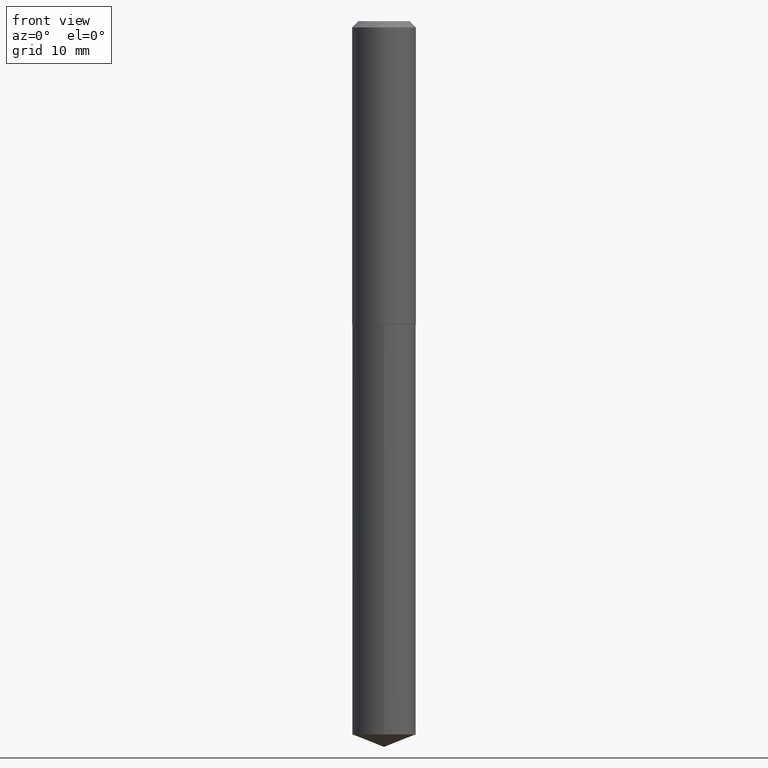
[diagram: clean part render]
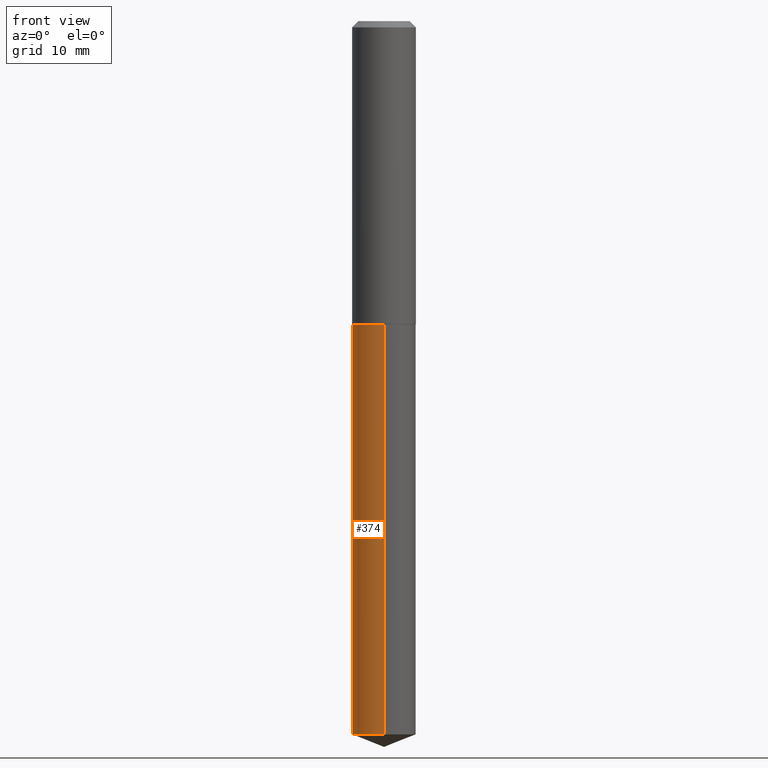
[diagram: same view with one face highlighted and labeled with its STEP entity id]
A machine part, front view. The second image highlights one B-rep face of the part: STEP entity #374.
In plain terms, the highlighted cylindrical surface (edge-blend (fillet) strip) has radius 4.0005 mm, axis along (-0, 0, 1).
Its self-contained STEP definition (entity closure, byte-faithful):
#3 = LINE ( 'NONE', #301, #84 ) ;
#6 = VECTOR ( 'NONE', #307, 39.37007874015748143 ) ;
#10 = DIRECTION ( 'NONE',  ( -6.982962677686264344E-15, -1.000000000000000000, 3.469013325287953293E-15 ) ) ;
#12 = CIRCLE ( 'NONE', #270, 0.1575000000000000011 ) ;
#14 = VERTEX_POINT ( 'NONE', #298 ) ;
#20 = DIRECTION ( 'NONE',  ( -2.446599759364599992E-29, 3.489861749520296398E-15, 1.000000000000000000 ) ) ;
#21 = ORIENTED_EDGE ( 'NONE', *, *, #231, .F. ) ;
#26 = CIRCLE ( 'NONE', #375, 0.1575000000000000011 ) ;
#30 = EDGE_LOOP ( 'NONE', ( #21, #70, #356, #329 ) ) ;
#70 = ORIENTED_EDGE ( 'NONE', *, *, #152, .T. ) ;
#84 = VECTOR ( 'NONE', #129, 39.37007874015748143 ) ;
#94 = DIRECTION ( 'NONE',  ( -6.982962677686264344E-15, -1.000000000000000000, 3.469013325287953293E-15 ) ) ;
#98 = EDGE_CURVE ( 'NONE', #149, #14, #3, .T. ) ;
#117 = VERTEX_POINT ( 'NONE', #220 ) ;
#123 = CARTESIAN_POINT ( 'NONE',  ( -1.099816621735500311E-15, -0.1575000000000122136, -3.520959100090645943 ) ) ;
#129 = DIRECTION ( 'NONE',  ( -2.446599759364599712E-29, 3.489861749520296793E-15, 1.000000000000000000 ) ) ;
#130 = CARTESIAN_POINT ( 'NONE',  ( 8.612685328676626713E-29, -1.229008403849446486E-14, -3.520959100090646832 ) ) ;
#132 = CARTESIAN_POINT ( 'NONE',  ( 1.119104808822194088E-15, 0.1574999999999947553, -1.496400000000000841 ) ) ;
#135 = CYLINDRICAL_SURFACE ( 'NONE', #311, 0.1575000000000000011 ) ;
#149 = VERTEX_POINT ( 'NONE', #123 ) ;
#152 = EDGE_CURVE ( 'NONE', #117, #149, #12, .T. ) ;
#157 = DIRECTION ( 'NONE',  ( -2.446599759364599992E-29, 3.489861749520296398E-15, 1.000000000000000000 ) ) ;
#165 = LINE ( 'NONE', #132, #6 ) ;
#220 = CARTESIAN_POINT ( 'NONE',  ( 1.119104808822243392E-15, 0.1574999999999876776, -3.520959100090647276 ) ) ;
#226 = FACE_OUTER_BOUND ( 'NONE', #30, .T. ) ;
#230 = CARTESIAN_POINT ( 'NONE',  ( 3.659399521575438742E-29, -5.224652675444883351E-15, -1.496400000000000174 ) ) ;
#231 = EDGE_CURVE ( 'NONE', #117, #266, #165, .T. ) ;
#253 = CARTESIAN_POINT ( 'NONE',  ( 1.119104808822244181E-15, 0.1574999999999947553, -1.496400000000000841 ) ) ;
#266 = VERTEX_POINT ( 'NONE', #253 ) ;
#270 = AXIS2_PLACEMENT_3D ( 'NONE', #130, #157, #94 ) ;
#298 = CARTESIAN_POINT ( 'NONE',  ( -1.099816621735550009E-15, -0.1575000000000052192, -1.496399999999999730 ) ) ;
#301 = CARTESIAN_POINT ( 'NONE',  ( -1.099816621735550009E-15, -0.1575000000000052192, -1.496399999999999730 ) ) ;
#307 = DIRECTION ( 'NONE',  ( -2.446599759364599712E-29, 3.489861749520296793E-15, 1.000000000000000000 ) ) ;
#311 = AXIS2_PLACEMENT_3D ( 'NONE', #230, #20, #10 ) ;
#315 = EDGE_CURVE ( 'NONE', #266, #14, #26, .T. ) ;
#329 = ORIENTED_EDGE ( 'NONE', *, *, #315, .F. ) ;
#356 = ORIENTED_EDGE ( 'NONE', *, *, #98, .T. ) ;
#367 = DIRECTION ( 'NONE',  ( -2.446599759364599992E-29, 3.489861749520296398E-15, 1.000000000000000000 ) ) ;
#370 = DIRECTION ( 'NONE',  ( -6.982962677686264344E-15, -1.000000000000000000, 3.469013325287953293E-15 ) ) ;
#374 = ADVANCED_FACE ( 'NONE', ( #226 ), #135, .T. ) ;
#375 = AXIS2_PLACEMENT_3D ( 'NONE', #376, #367, #370 ) ;
#376 = CARTESIAN_POINT ( 'NONE',  ( 3.659399521575438742E-29, -5.224652675444883351E-15, -1.496400000000000174 ) ) ;